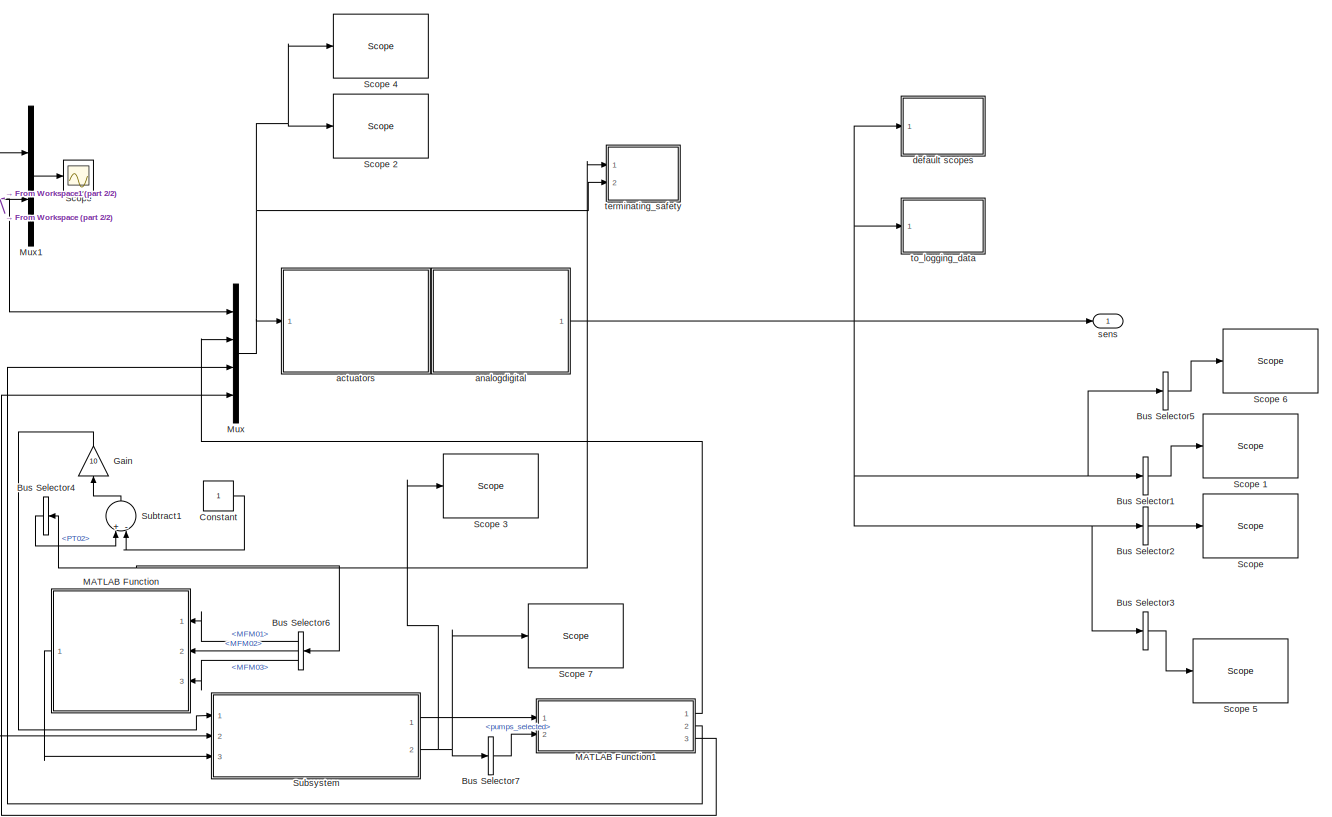
[diagram: root canvas - part 1/2, most of the canvas]
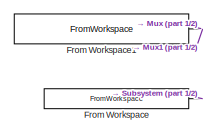
[diagram: root canvas - part 2/2, top left region]
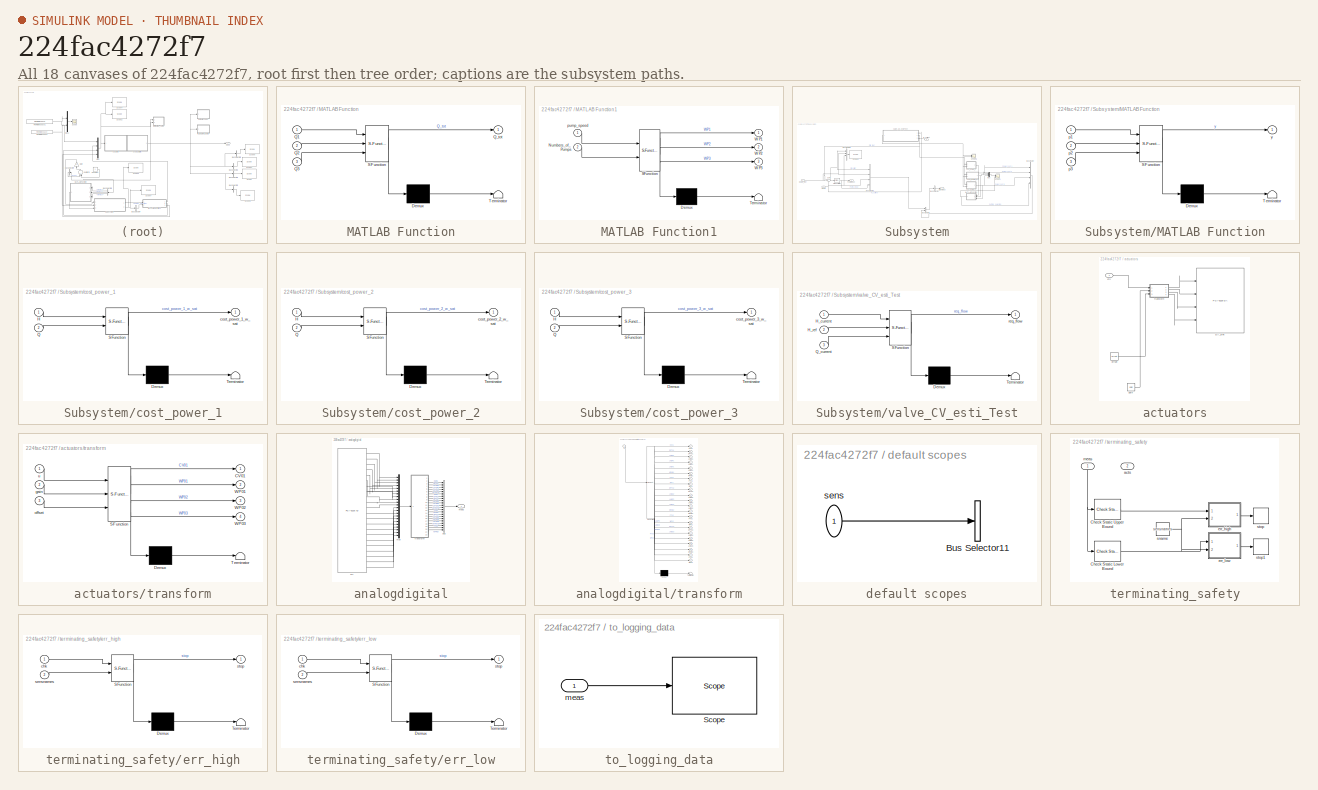
[diagram: thumbnail index - all 18 canvases of the model, root first then tree order]
MODEL slx_224fac4272f7
KIND model
CONFIG AbsTol = auto
CONFIG FixedStep = auto
CONFIG MaxStep = 0.1
CONFIG MinStep = auto
CONFIG RelTol = 1e-3
CONFIG SampleTimeConstraint = Unconstrained
CONFIG Solver = FixedStepAuto
CONFIG SolverMode = Auto
CONFIG SolverName = FixedStepAuto
CONFIG StartTime = 0.0
CONFIG StopTime = 5580
BLOCK [BusSelector] Bus Selector1
  OutputAsBus = on
  OutputSignals = CV01,DPT01,DPT02,DPT03,MFM01,MFM02,MFM03,PT02
  Ports = [1, 1]
BLOCK [BusSelector] Bus Selector2
  OutputAsBus = on
  OutputSignals = LMGV1,LMGV2,LMGV3,LMGC1,LMGC2,LMGC3,LMGP1,LMGP2,LMGP3
  Ports = [1, 1]
BLOCK [BusSelector] Bus Selector3
  OutputAsBus = on
  OutputSignals = WP01,WP02,WP03
  Ports = [1, 1]
BLOCK [BusSelector] Bus Selector4
  OutputSignals = PT02
  Ports = [1, 1]
BLOCK [BusSelector] Bus Selector5
  OutputAsBus = on
  OutputSignals = PT02
  Ports = [1, 1]
BLOCK [BusSelector] Bus Selector6
  OutputSignals = MFM01,MFM02,MFM03
  Ports = [1, 3]
BLOCK [BusSelector] Bus Selector7
  OutputSignals = pumps_selected
  Ports = [1, 1]
BLOCK [Constant] Constant
BLOCK [FromWorkspace] From Workspace
  Interpolate = off
  OutputAfterFinalValue = Holding final value
  SampleTime = 0
  VariableName = [Timevec.', H_ref_sort]
  ZeroCross = on
BLOCK [FromWorkspace] From Workspace1
  Interpolate = off
  OutputAfterFinalValue = Holding final value
  SampleTime = 0
  VariableName = [Timevec.', valvepos_sort]
  ZeroCross = on
BLOCK [Gain] Gain
  Gain = 10
  OutDataTypeStr = Inherit: Inherit via internal rule
  ParamDataTypeStr = Inherit: Inherit via internal rule
  SaturateOnIntegerOverflow = off
BLOCK [SubSystem] MATLAB Function
  ErrorFcn = Stateflow.Translate.translate
  PermitHierarchicalResolution = ExplicitOnly
  Ports = [3, 1]
  RequestExecContextInheritance = off
  SFBlockType = MATLAB Function
  TreatAsAtomicUnit = on
  Variant = off
BLOCK [Demux] MATLAB Function/ Demux 
  Outputs = 1
  Ports = [1, 1]
BLOCK [S-Function] MATLAB Function/ SFunction 
  EnableBusSupport = on
  FunctionName = sf_sfun
  PortCounts = [3 2]
  Ports = [3, 2]
  SFunctionDeploymentMode = off
  Tag = Stateflow S-Function feedback_plant_with_simple_v2_PID 3
BLOCK [Terminator] MATLAB Function/ Terminator 
BLOCK [Inport] MATLAB Function/Q1
  IconDisplay = Port number
BLOCK [Inport] MATLAB Function/Q2
  IconDisplay = Port number
  Port = 2
BLOCK [Inport] MATLAB Function/Q3
  IconDisplay = Port number
  Port = 3
BLOCK [Outport] MATLAB Function/Q_tot
  IconDisplay = Port number
BLOCK [SubSystem] MATLAB Function1
  ErrorFcn = Stateflow.Translate.translate
  PermitHierarchicalResolution = ExplicitOnly
  Ports = [2, 3]
  RequestExecContextInheritance = off
  SFBlockType = MATLAB Function
  TreatAsAtomicUnit = on
  Variant = off
BLOCK [Demux] MATLAB Function1/ Demux 
  Outputs = 1
  Ports = [1, 1]
BLOCK [S-Function] MATLAB Function1/ SFunction 
  EnableBusSupport = on
  FunctionName = sf_sfun
  PortCounts = [2 4]
  Ports = [2, 4]
  SFunctionDeploymentMode = off
  Tag = Stateflow S-Function feedback_plant_with_simple_v2_PID 4
BLOCK [Terminator] MATLAB Function1/ Terminator 
BLOCK [Inport] MATLAB Function1/Numbers_of_Pumps
  IconDisplay = Port number
  Port = 2
BLOCK [Outport] MATLAB Function1/WP1
  IconDisplay = Port number
BLOCK [Outport] MATLAB Function1/WP2
  IconDisplay = Port number
  Port = 2
BLOCK [Outport] MATLAB Function1/WP3
  IconDisplay = Port number
  Port = 3
BLOCK [Inport] MATLAB Function1/pump_speed
  IconDisplay = Port number
BLOCK [Mux] Mux
  DisplayOption = bar
  Ports = [4, 1]
BLOCK [Mux] Mux1
  DisplayOption = bar
  Inputs = 2
  Ports = [2, 1]
BLOCK [Scope] Scope
  Ports = [1]
  ScopeSpecificationString = Simulink.scopes.TimeScopeBlockCfg('CurrentConfiguration', extmgr.ConfigurationSet(extmgr.Configuration('Core','General UI',true),extmgr.Configuration('Core','Source UI',true),extmgr.Configuration('Sources','WiredSimulink',true),extmgr.Configuration('Visuals','Time Domain',true,'SerializedDisplays',{struct('MinYLimReal','-0.4','MaxYLimReal','5.6','YLabelReal','','MinYLimMag','0.00000','MaxYLimMag',...<+1375ch>
BLOCK [Reference] Scope   REF=slrtlib/Displays and
Logging/Scope 
  Ports = [1]
  SourceBlock = slrtlib/Displays and\nLogging/Scope
  SourceType = xpcscopeblock
BLOCK [Reference] Scope 1  REF=slrtlib/Displays and
Logging/Scope 
  Ports = [1]
  SourceBlock = slrtlib/Displays and\nLogging/Scope
  SourceType = xpcscopeblock
BLOCK [Reference] Scope 2  REF=slrtlib/Displays and
Logging/Scope 
  Ports = [1]
  SourceBlock = slrtlib/Displays and\nLogging/Scope
  SourceType = xpcscopeblock
BLOCK [Reference] Scope 3  REF=slrtlib/Displays and
Logging/Scope 
  Ports = [1]
  SourceBlock = slrtlib/Displays and\nLogging/Scope
  SourceType = xpcscopeblock
BLOCK [Reference] Scope 4  REF=slrtlib/Displays and
Logging/Scope 
  Ports = [1]
  SourceBlock = slrtlib/Displays and\nLogging/Scope
  SourceType = xpcscopeblock
BLOCK [Reference] Scope 5  REF=slrtlib/Displays and
Logging/Scope 
  Ports = [1]
  SourceBlock = slrtlib/Displays and\nLogging/Scope
  SourceType = xpcscopeblock
BLOCK [Reference] Scope 6  REF=slrtlib/Displays and
Logging/Scope 
  Ports = [1]
  SourceBlock = slrtlib/Displays and\nLogging/Scope
  SourceType = xpcscopeblock
BLOCK [Reference] Scope 7  REF=slrtlib/Displays and
Logging/Scope 
  Ports = [1]
  SourceBlock = slrtlib/Displays and\nLogging/Scope
  SourceType = xpcscopeblock
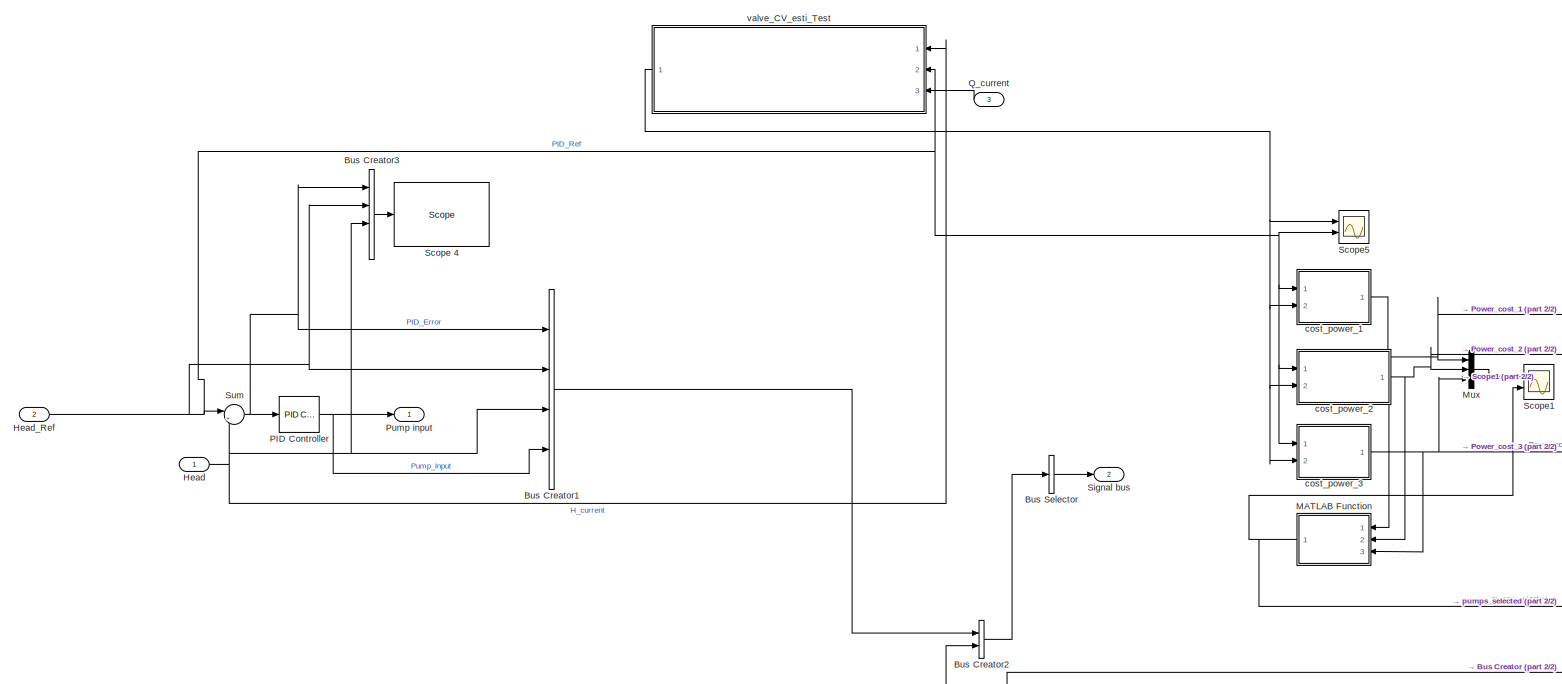
[diagram: Subsystem - part 1/2, most of the canvas]
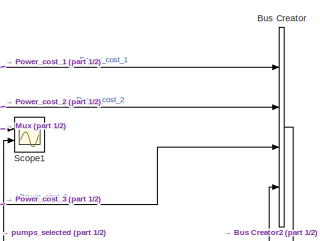
[diagram: Subsystem - part 2/2, middle right region]
BLOCK [SubSystem] Subsystem
  Ports = [3, 2]
  RequestExecContextInheritance = off
  Variant = off
BLOCK [BusCreator] Subsystem/Bus Creator
  DisplayOption = bar
  InheritFromInputs = on
  Inputs = 4
  Ports = [4, 1]
BLOCK [BusCreator] Subsystem/Bus Creator1
  DisplayOption = bar
  InheritFromInputs = on
  Inputs = 4
  Ports = [4, 1]
BLOCK [BusCreator] Subsystem/Bus Creator2
  DisplayOption = bar
  InheritFromInputs = on
  Inputs = 2
  Ports = [2, 1]
BLOCK [BusCreator] Subsystem/Bus Creator3
  DisplayOption = bar
  InheritFromInputs = on
  Inputs = 4
  Ports = [4, 1]
BLOCK [BusSelector] Subsystem/Bus Selector
  OutputAsBus = on
  OutputSignals = signal1.PID_Error,signal1.PID_Ref,signal1.Pump_Input,signal2.Power_cost_1,signal2.Power_cost_2,signal2.Power_cost_3,signal2.pumps_selected,signal1.H_current
  Ports = [1, 1]
BLOCK [Inport] Subsystem/Head
  IconDisplay = Port number
BLOCK [Inport] Subsystem/Head_Ref
  IconDisplay = Port number
  Port = 2
BLOCK [SubSystem] Subsystem/MATLAB Function
  ErrorFcn = Stateflow.Translate.translate
  PermitHierarchicalResolution = ExplicitOnly
  Ports = [3, 1]
  RequestExecContextInheritance = off
  SFBlockType = MATLAB Function
  TreatAsAtomicUnit = on
  Variant = off
BLOCK [Demux] Subsystem/MATLAB Function/ Demux 
  Outputs = 1
  Ports = [1, 1]
BLOCK [S-Function] Subsystem/MATLAB Function/ SFunction 
  EnableBusSupport = on
  FunctionName = sf_sfun
  PortCounts = [3 2]
  Ports = [3, 2]
  SFunctionDeploymentMode = off
  Tag = Stateflow S-Function feedback_plant_with_simple_v2_PID 5
BLOCK [Terminator] Subsystem/MATLAB Function/ Terminator 
BLOCK [Inport] Subsystem/MATLAB Function/p1
  IconDisplay = Port number
BLOCK [Inport] Subsystem/MATLAB Function/p2
  IconDisplay = Port number
  Port = 2
BLOCK [Inport] Subsystem/MATLAB Function/p3
  IconDisplay = Port number
  Port = 3
BLOCK [Outport] Subsystem/MATLAB Function/y
  IconDisplay = Port number
BLOCK [Mux] Subsystem/Mux
  DisplayOption = bar
  Inputs = 3
  Ports = [3, 1]
BLOCK [Reference] Subsystem/PID Controller  REF=simulink/Continuous/PID Controller
  Ports = [1, 1]
  SourceBlock = simulink/Continuous/PID Controller
  SourceType = PID 1dof
BLOCK [Outport] Subsystem/Pump input 
  IconDisplay = Port number
BLOCK [Inport] Subsystem/Q_current
  IconDisplay = Port number
  Port = 3
BLOCK [Reference] Subsystem/Scope 4  REF=slrtlib/Displays and
Logging/Scope 
  Ports = [1]
  SourceBlock = slrtlib/Displays and\nLogging/Scope
  SourceType = xpcscopeblock
BLOCK [Scope] Subsystem/Scope1
  NumInputPorts = 2
  Ports = [2]
  ScopeSpecificationString = Simulink.scopes.TimeScopeBlockCfg('CurrentConfiguration', extmgr.ConfigurationSet(extmgr.Configuration('Core','General UI',true,'DisplayFullSourceName',true),extmgr.Configuration('Core','Source UI',true),extmgr.Configuration('Sources','WiredSimulink',true,'DataLoggingVariableName','ScopeData1'),extmgr.Configuration('Visuals','Time Domain',true,'SerializedDisplays',{struct('MinYLimReal','-18674.989...<+2112ch>
BLOCK [Scope] Subsystem/Scope5
  NumInputPorts = 2
  Ports = [2]
  ScopeSpecificationString = Simulink.scopes.TimeScopeBlockCfg('CurrentConfiguration', extmgr.ConfigurationSet(extmgr.Configuration('Core','General UI',true),extmgr.Configuration('Core','Source UI',true),extmgr.Configuration('Sources','WiredSimulink',true,'DataLoggingVariableName','ScopeData1'),extmgr.Configuration('Visuals','Time Domain',true,'SerializedDisplays',{struct('MinYLimReal','-1.40034','MaxYLimReal','12.60304','YLa...<+2058ch>
BLOCK [Outport] Subsystem/Signal bus
  IconDisplay = Port number
  Port = 2
BLOCK [Sum] Subsystem/Sum
  IconShape = round
  InputSameDT = off
  Inputs = |+-
  OutDataTypeStr = Inherit: Inherit via internal rule
  Ports = [2, 1]
  SaturateOnIntegerOverflow = off
BLOCK [SubSystem] Subsystem/cost_power_1
  ErrorFcn = Stateflow.Translate.translate
  PermitHierarchicalResolution = ExplicitOnly
  Ports = [2, 1]
  RequestExecContextInheritance = off
  SFBlockType = MATLAB Function
  TreatAsAtomicUnit = on
  Variant = off
BLOCK [Demux] Subsystem/cost_power_1/ Demux 
  Outputs = 1
  Ports = [1, 1]
BLOCK [S-Function] Subsystem/cost_power_1/ SFunction 
  EnableBusSupport = on
  FunctionName = sf_sfun
  PortCounts = [2 2]
  Ports = [2, 2]
  SFunctionDeploymentMode = off
  Tag = Stateflow S-Function feedback_plant_with_simple_v2_PID 6
BLOCK [Terminator] Subsystem/cost_power_1/ Terminator 
BLOCK [Inport] Subsystem/cost_power_1/H
  IconDisplay = Port number
BLOCK [Inport] Subsystem/cost_power_1/Q
  IconDisplay = Port number
  Port = 2
BLOCK [Outport] Subsystem/cost_power_1/cost_power_1_w_sat
  IconDisplay = Port number
BLOCK [SubSystem] Subsystem/cost_power_2
  ErrorFcn = Stateflow.Translate.translate
  PermitHierarchicalResolution = ExplicitOnly
  Ports = [2, 1]
  RequestExecContextInheritance = off
  SFBlockType = MATLAB Function
  TreatAsAtomicUnit = on
  Variant = off
BLOCK [Demux] Subsystem/cost_power_2/ Demux 
  Outputs = 1
  Ports = [1, 1]
BLOCK [S-Function] Subsystem/cost_power_2/ SFunction 
  EnableBusSupport = on
  FunctionName = sf_sfun
  PortCounts = [2 2]
  Ports = [2, 2]
  SFunctionDeploymentMode = off
  Tag = Stateflow S-Function feedback_plant_with_simple_v2_PID 7
BLOCK [Terminator] Subsystem/cost_power_2/ Terminator 
BLOCK [Inport] Subsystem/cost_power_2/H
  IconDisplay = Port number
BLOCK [Inport] Subsystem/cost_power_2/Q
  IconDisplay = Port number
  Port = 2
BLOCK [Outport] Subsystem/cost_power_2/cost_power_2_w_sat
  IconDisplay = Port number
BLOCK [SubSystem] Subsystem/cost_power_3
  ErrorFcn = Stateflow.Translate.translate
  PermitHierarchicalResolution = ExplicitOnly
  Ports = [2, 1]
  RequestExecContextInheritance = off
  SFBlockType = MATLAB Function
  TreatAsAtomicUnit = on
  Variant = off
BLOCK [Demux] Subsystem/cost_power_3/ Demux 
  Outputs = 1
  Ports = [1, 1]
BLOCK [S-Function] Subsystem/cost_power_3/ SFunction 
  EnableBusSupport = on
  FunctionName = sf_sfun
  PortCounts = [2 2]
  Ports = [2, 2]
  SFunctionDeploymentMode = off
  Tag = Stateflow S-Function feedback_plant_with_simple_v2_PID 8
BLOCK [Terminator] Subsystem/cost_power_3/ Terminator 
BLOCK [Inport] Subsystem/cost_power_3/H
  IconDisplay = Port number
BLOCK [Inport] Subsystem/cost_power_3/Q
  IconDisplay = Port number
  Port = 2
BLOCK [Outport] Subsystem/cost_power_3/cost_power_3_w_sat
  IconDisplay = Port number
BLOCK [SubSystem] Subsystem/valve_CV_esti_Test
  ErrorFcn = Stateflow.Translate.translate
  PermitHierarchicalResolution = ExplicitOnly
  Ports = [3, 1]
  RequestExecContextInheritance = off
  SFBlockType = MATLAB Function
  TreatAsAtomicUnit = on
  Variant = off
BLOCK [Demux] Subsystem/valve_CV_esti_Test/ Demux 
  Outputs = 1
  Ports = [1, 1]
BLOCK [S-Function] Subsystem/valve_CV_esti_Test/ SFunction 
  EnableBusSupport = on
  FunctionName = sf_sfun
  PortCounts = [3 2]
  Ports = [3, 2]
  SFunctionDeploymentMode = off
  Tag = Stateflow S-Function feedback_plant_with_simple_v2_PID 9
BLOCK [Terminator] Subsystem/valve_CV_esti_Test/ Terminator 
BLOCK [Inport] Subsystem/valve_CV_esti_Test/H_current
  IconDisplay = Port number
BLOCK [Inport] Subsystem/valve_CV_esti_Test/H_ref
  IconDisplay = Port number
  Port = 2
BLOCK [Inport] Subsystem/valve_CV_esti_Test/Q_current
  IconDisplay = Port number
  Port = 3
BLOCK [Outport] Subsystem/valve_CV_esti_Test/req_flow
  IconDisplay = Port number
BLOCK [Sum] Subtract1
  InputSameDT = off
  Inputs = +-
  OutDataTypeStr = Inherit: Inherit via internal rule
  Ports = [2, 1]
  SaturateOnIntegerOverflow = off
BLOCK [SubSystem] actuators
  Ports = [1]
  RequestExecContextInheritance = off
  Variant = off
BLOCK [Reference] actuators/DA_sink  REF=xpcnilib/D//A/M Series/PCI-6229 DA
  Ports = [4]
  SourceBlock = xpcnilib/D//A/M Series/PCI-6229 DA
  SourceType = danipci6229
BLOCK [Inport] actuators/ctrl
  IconDisplay = Port number
BLOCK [Constant] actuators/gain
  Value = gain
BLOCK [Constant] actuators/offset
  Value = offset
BLOCK [SubSystem] actuators/transform
  ErrorFcn = Stateflow.Translate.translate
  PermitHierarchicalResolution = ExplicitOnly
  Ports = [3, 4]
  RequestExecContextInheritance = off
  SFBlockType = MATLAB Function
  TreatAsAtomicUnit = on
  Variant = off
BLOCK [Demux] actuators/transform/ Demux 
  Outputs = 1
  Ports = [1, 1]
BLOCK [S-Function] actuators/transform/ SFunction 
  EnableBusSupport = on
  FunctionName = sf_sfun
  PortCounts = [3 5]
  Ports = [3, 5]
  SFunctionDeploymentMode = off
  Tag = Stateflow S-Function feedback_plant_with_simple_v2_PID 1
BLOCK [Terminator] actuators/transform/ Terminator 
BLOCK [Outport] actuators/transform/CV01
  IconDisplay = Port number
BLOCK [Outport] actuators/transform/WP01
  IconDisplay = Port number
  Port = 2
BLOCK [Outport] actuators/transform/WP02
  IconDisplay = Port number
  Port = 3
BLOCK [Outport] actuators/transform/WP03
  IconDisplay = Port number
  Port = 4
BLOCK [Inport] actuators/transform/gain
  IconDisplay = Port number
  Port = 2
BLOCK [Inport] actuators/transform/offset
  IconDisplay = Port number
  Port = 3
BLOCK [Inport] actuators/transform/u
  IconDisplay = Port number
BLOCK [SubSystem] analogdigital
  Ports = [0, 1]
  RequestExecContextInheritance = off
  Variant = off
BLOCK [BusCreator] analogdigital/bus
  DisplayOption = bar
  InheritFromInputs = on
  Inputs = 22
  Ports = [22, 1]
BLOCK [Outport] analogdigital/meas
  IconDisplay = Port number
BLOCK [Mux] analogdigital/mux
  DisplayOption = bar
  Inputs = 22
  Ports = [22, 1]
BLOCK [Reference] analogdigital/src  REF=xpcnilib/A//D/M Series/PCI-6229 AD
  Ports = [0, 22]
  SourceBlock = xpcnilib/A//D/M Series/PCI-6229 AD
  SourceType = adnipci6229
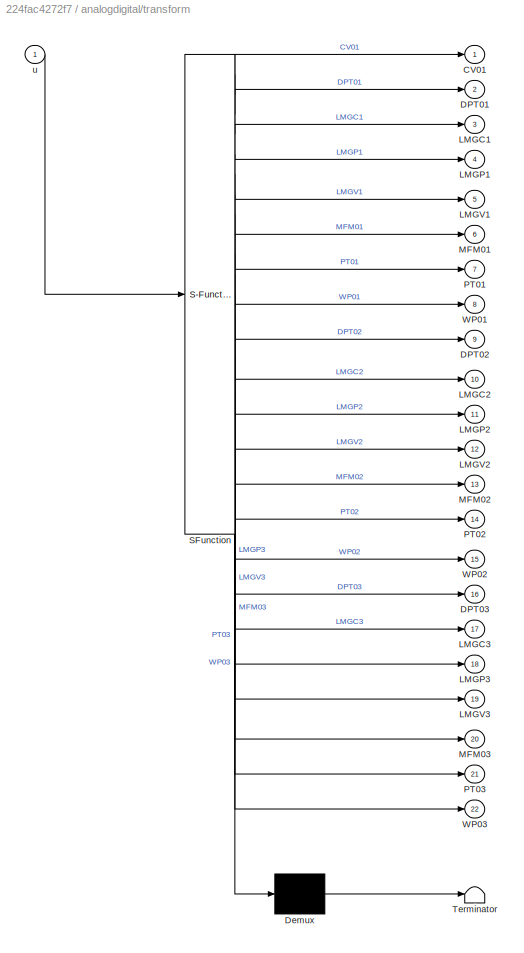
BLOCK [SubSystem] analogdigital/transform
  ErrorFcn = Stateflow.Translate.translate
  PermitHierarchicalResolution = ExplicitOnly
  Ports = [1, 22]
  RequestExecContextInheritance = off
  SFBlockType = MATLAB Function
  TreatAsAtomicUnit = on
  Variant = off
BLOCK [Demux] analogdigital/transform/ Demux 
  Outputs = 1
  Ports = [1, 1]
BLOCK [S-Function] analogdigital/transform/ SFunction 
  EnableBusSupport = on
  FunctionName = sf_sfun
  Parameters = gain,offset
  PortCounts = [1 23]
  Ports = [1, 23]
  SFunctionDeploymentMode = off
  Tag = Stateflow S-Function feedback_plant_with_simple_v2_PID 2
BLOCK [Terminator] analogdigital/transform/ Terminator 
BLOCK [Outport] analogdigital/transform/CV01
  IconDisplay = Port number
BLOCK [Outport] analogdigital/transform/DPT01
  IconDisplay = Port number
  Port = 2
BLOCK [Outport] analogdigital/transform/DPT02
  IconDisplay = Port number
  Port = 9
BLOCK [Outport] analogdigital/transform/DPT03
  IconDisplay = Port number
  Port = 16
BLOCK [Outport] analogdigital/transform/LMGC1
  IconDisplay = Port number
  Port = 3
BLOCK [Outport] analogdigital/transform/LMGC2
  IconDisplay = Port number
  Port = 10
BLOCK [Outport] analogdigital/transform/LMGC3
  IconDisplay = Port number
  Port = 17
BLOCK [Outport] analogdigital/transform/LMGP1
  IconDisplay = Port number
  Port = 4
BLOCK [Outport] analogdigital/transform/LMGP2
  IconDisplay = Port number
  Port = 11
BLOCK [Outport] analogdigital/transform/LMGP3
  IconDisplay = Port number
  Port = 18
BLOCK [Outport] analogdigital/transform/LMGV1
  IconDisplay = Port number
  Port = 5
BLOCK [Outport] analogdigital/transform/LMGV2
  IconDisplay = Port number
  Port = 12
BLOCK [Outport] analogdigital/transform/LMGV3
  IconDisplay = Port number
  Port = 19
BLOCK [Outport] analogdigital/transform/MFM01
  IconDisplay = Port number
  Port = 6
BLOCK [Outport] analogdigital/transform/MFM02
  IconDisplay = Port number
  Port = 13
BLOCK [Outport] analogdigital/transform/MFM03
  IconDisplay = Port number
  Port = 20
BLOCK [Outport] analogdigital/transform/PT01
  IconDisplay = Port number
  Port = 7
BLOCK [Outport] analogdigital/transform/PT02
  IconDisplay = Port number
  Port = 14
BLOCK [Outport] analogdigital/transform/PT03
  IconDisplay = Port number
  Port = 21
BLOCK [Outport] analogdigital/transform/WP01
  IconDisplay = Port number
  Port = 8
BLOCK [Outport] analogdigital/transform/WP02
  IconDisplay = Port number
  Port = 15
BLOCK [Outport] analogdigital/transform/WP03
  IconDisplay = Port number
  Port = 22
BLOCK [Inport] analogdigital/transform/u
  IconDisplay = Port number
BLOCK [SubSystem] default scopes
  Ports = [1]
  RequestExecContextInheritance = off
  Variant = off
BLOCK [BusSelector] default scopes/Bus Selector11
  OutputAsBus = on
  OutputSignals = CV01,DPT01,LMGC1
  Ports = [1, 1]
BLOCK [Inport] default scopes/sens
  IconDisplay = Port number
BLOCK [Outport] sens
  IconDisplay = Port number
BLOCK [SubSystem] terminating_safety
  Ports = [2]
  RequestExecContextInheritance = off
  Variant = off
BLOCK [Reference] terminating_safety/Check Static Lower Bound  REF=simulink/Model
Verification/Check Static 
Lower Bound
  Description = [sensors.MinOp]-([sensors.MaxOp]-[sensors.MinOp])*0.05 <= u
  Ports = [1, 1]
  SourceBlock = simulink/Model\nVerification/Check Static \nLower Bound
  SourceType = Checks_SMin
BLOCK [Reference] terminating_safety/Check Static Upper Bound  REF=simulink/Model
Verification/Check Static 
Upper Bound
  Description = u <= [sensors.MaxOp]+([sensors.MaxOp]-[sensors.MinOp])*0.05
  Ports = [1, 1]
  SourceBlock = simulink/Model\nVerification/Check Static \nUpper Bound
  SourceType = Checks_SMax
BLOCK [Inport] terminating_safety/acts
  IconDisplay = Port number
  Port = 2
BLOCK [SubSystem] terminating_safety/err_high
  ErrorFcn = Stateflow.Translate.translate
  PermitHierarchicalResolution = ExplicitOnly
  Ports = [2, 1]
  RequestExecContextInheritance = off
  SFBlockType = MATLAB Function
  TreatAsAtomicUnit = on
  Variant = off
BLOCK [Demux] terminating_safety/err_high/ Demux 
  Outputs = 1
  Ports = [1, 1]
BLOCK [S-Function] terminating_safety/err_high/ SFunction 
  EnableBusSupport = on
  FunctionName = sf_sfun
  PortCounts = [2 2]
  Ports = [2, 2]
  SFunctionDeploymentMode = off
  Tag = Stateflow S-Function feedback_plant_with_simple_v2_PID 18
BLOCK [Terminator] terminating_safety/err_high/ Terminator 
BLOCK [Inport] terminating_safety/err_high/chk
  IconDisplay = Port number
BLOCK [Inport] terminating_safety/err_high/sensnames
  IconDisplay = Port number
  Port = 2
BLOCK [Outport] terminating_safety/err_high/stop
  IconDisplay = Port number
BLOCK [SubSystem] terminating_safety/err_low
  ErrorFcn = Stateflow.Translate.translate
  PermitHierarchicalResolution = ExplicitOnly
  Ports = [2, 1]
  RequestExecContextInheritance = off
  SFBlockType = MATLAB Function
  TreatAsAtomicUnit = on
  Variant = off
BLOCK [Demux] terminating_safety/err_low/ Demux 
  Outputs = 1
  Ports = [1, 1]
BLOCK [S-Function] terminating_safety/err_low/ SFunction 
  EnableBusSupport = on
  FunctionName = sf_sfun
  PortCounts = [2 2]
  Ports = [2, 2]
  SFunctionDeploymentMode = off
  Tag = Stateflow S-Function feedback_plant_with_simple_v2_PID 19
BLOCK [Terminator] terminating_safety/err_low/ Terminator 
BLOCK [Inport] terminating_safety/err_low/chk
  IconDisplay = Port number
BLOCK [Inport] terminating_safety/err_low/sensnames
  IconDisplay = Port number
  Port = 2
BLOCK [Outport] terminating_safety/err_low/stop
  IconDisplay = Port number
BLOCK [Inport] terminating_safety/meas
  IconDisplay = Port number
BLOCK [Constant] terminating_safety/sname
  Value = sensnames
BLOCK [Stop] terminating_safety/stop
BLOCK [Stop] terminating_safety/stop1
BLOCK [SubSystem] to_logging_data
  Ports = [1]
  RequestExecContextInheritance = off
  Variant = off
BLOCK [Reference] to_logging_data/Scope   REF=slrtlib/Displays and
Logging/Scope 
  Ports = [1]
  SourceBlock = slrtlib/Displays and\nLogging/Scope
  SourceType = xpcscopeblock
BLOCK [Inport] to_logging_data/meas
  IconDisplay = Port number
LINE Bus Selector1:1 -> Scope 1:1
LINE Bus Selector2:1 -> Scope :1
LINE Bus Selector3:1 -> Scope 5:1
LINE Bus Selector4:1 -> Subtract1:1
LINE Bus Selector5:1 -> Scope 6:1
LINE Bus Selector6:1 -> MATLAB Function:1
LINE Bus Selector6:2 -> MATLAB Function:2
LINE Bus Selector6:3 -> MATLAB Function:3
LINE Bus Selector7:1 -> MATLAB Function1:2
LINE Constant:1 -> Subtract1:2
NET From Workspace1:1 -> Mux1:1, Mux:1
NET From Workspace:1 -> Mux1:2, Subsystem:2
LINE Gain:1 -> Subsystem:1
LINE MATLAB Function1:1 -> Mux:2
LINE MATLAB Function1:2 -> Mux:3
LINE MATLAB Function1:3 -> Mux:4
LINE MATLAB Function:1 -> Subsystem:3
LINE Mux1:1 -> Scope:1
NET Mux:1 -> Scope 2:1, Scope 4:1, actuators:1, terminating_safety:2
LINE Subsystem/Bus Creator1:1 -> Subsystem/Bus Creator2:1
LINE Subsystem/Bus Creator2:1 -> Subsystem/Bus Selector:1
LINE Subsystem/Bus Creator3:1 -> Subsystem/Scope 4:1
LINE Subsystem/Bus Creator:1 -> Subsystem/Bus Creator2:2
LINE Subsystem/Bus Selector:1 -> Subsystem/Signal bus:1
NET Subsystem/Head:1 -> Subsystem/Bus Creator1:3, Subsystem/Bus Creator3:3, Subsystem/Sum:2, Subsystem/valve_CV_esti_Test:1
NET Subsystem/Head_Ref:1 -> Subsystem/Bus Creator1:2, Subsystem/Bus Creator3:2, Subsystem/Scope5:2, Subsystem/Sum:1, Subsystem/cost_power_1:1, Subsystem/cost_power_2:1, Subsystem/cost_power_3:1, Subsystem/valve_CV_esti_Test:2
NET Subsystem/MATLAB Function:1 -> Subsystem/Bus Creator:4, Subsystem/Scope1:2
LINE Subsystem/Mux:1 -> Subsystem/Scope1:1
NET Subsystem/PID Controller:1 -> Subsystem/Bus Creator1:4, Subsystem/Pump input :1
LINE Subsystem/Q_current:1 -> Subsystem/valve_CV_esti_Test:3
NET Subsystem/Sum:1 -> Subsystem/Bus Creator1:1, Subsystem/Bus Creator3:1, Subsystem/PID Controller:1
NET Subsystem/cost_power_1:1 -> Subsystem/Bus Creator:1, Subsystem/MATLAB Function:1, Subsystem/Mux:1
NET Subsystem/cost_power_2:1 -> Subsystem/Bus Creator:2, Subsystem/MATLAB Function:2, Subsystem/Mux:2
NET Subsystem/cost_power_3:1 -> Subsystem/Bus Creator:3, Subsystem/MATLAB Function:3, Subsystem/Mux:3
NET Subsystem/valve_CV_esti_Test:1 -> Subsystem/Scope5:1, Subsystem/cost_power_1:2, Subsystem/cost_power_2:2, Subsystem/cost_power_3:2
LINE Subsystem:1 -> MATLAB Function1:1
NET Subsystem:2 -> Bus Selector7:1, Scope 3:1, Scope 7:1
LINE Subtract1:1 -> Gain:1
LINE actuators/ctrl:1 -> actuators/transform:1
LINE actuators/gain:1 -> actuators/transform:2
LINE actuators/offset:1 -> actuators/transform:3
LINE actuators/transform:1 -> actuators/DA_sink:1
LINE actuators/transform:2 -> actuators/DA_sink:2
LINE actuators/transform:3 -> actuators/DA_sink:3
LINE actuators/transform:4 -> actuators/DA_sink:4
LINE analogdigital/bus:1 -> analogdigital/meas:1
LINE analogdigital/mux:1 -> analogdigital/transform:1
LINE analogdigital/src:1 -> analogdigital/mux:1
LINE analogdigital/src:10 -> analogdigital/mux:10
LINE analogdigital/src:11 -> analogdigital/mux:11
LINE analogdigital/src:12 -> analogdigital/mux:12
LINE analogdigital/src:13 -> analogdigital/mux:13
LINE analogdigital/src:14 -> analogdigital/mux:14
LINE analogdigital/src:15 -> analogdigital/mux:15
LINE analogdigital/src:16 -> analogdigital/mux:16
LINE analogdigital/src:17 -> analogdigital/mux:17
LINE analogdigital/src:18 -> analogdigital/mux:18
LINE analogdigital/src:19 -> analogdigital/mux:19
LINE analogdigital/src:2 -> analogdigital/mux:2
LINE analogdigital/src:20 -> analogdigital/mux:20
LINE analogdigital/src:21 -> analogdigital/mux:21
LINE analogdigital/src:22 -> analogdigital/mux:22
LINE analogdigital/src:3 -> analogdigital/mux:3
LINE analogdigital/src:4 -> analogdigital/mux:4
LINE analogdigital/src:5 -> analogdigital/mux:5
LINE analogdigital/src:6 -> analogdigital/mux:6
LINE analogdigital/src:7 -> analogdigital/mux:7
LINE analogdigital/src:8 -> analogdigital/mux:8
LINE analogdigital/src:9 -> analogdigital/mux:9
LINE analogdigital/transform:1 -> analogdigital/bus:1
LINE analogdigital/transform:10 -> analogdigital/bus:10
LINE analogdigital/transform:11 -> analogdigital/bus:11
LINE analogdigital/transform:12 -> analogdigital/bus:12
LINE analogdigital/transform:13 -> analogdigital/bus:13
LINE analogdigital/transform:14 -> analogdigital/bus:14
LINE analogdigital/transform:15 -> analogdigital/bus:15
LINE analogdigital/transform:16 -> analogdigital/bus:16
LINE analogdigital/transform:17 -> analogdigital/bus:17
LINE analogdigital/transform:18 -> analogdigital/bus:18
LINE analogdigital/transform:19 -> analogdigital/bus:19
LINE analogdigital/transform:2 -> analogdigital/bus:2
LINE analogdigital/transform:20 -> analogdigital/bus:20
LINE analogdigital/transform:21 -> analogdigital/bus:21
LINE analogdigital/transform:22 -> analogdigital/bus:22
LINE analogdigital/transform:3 -> analogdigital/bus:3
LINE analogdigital/transform:4 -> analogdigital/bus:4
LINE analogdigital/transform:5 -> analogdigital/bus:5
LINE analogdigital/transform:6 -> analogdigital/bus:6
LINE analogdigital/transform:7 -> analogdigital/bus:7
LINE analogdigital/transform:8 -> analogdigital/bus:8
LINE analogdigital/transform:9 -> analogdigital/bus:9
NET analogdigital:1 -> Bus Selector1:1, Bus Selector2:1, Bus Selector3:1, Bus Selector4:1, Bus Selector5:1, Bus Selector6:1, default scopes:1, sens:1, terminating_safety:1, to_logging_data:1
LINE default scopes/sens:1 -> default scopes/Bus Selector11:1
LINE terminating_safety/Check Static Lower Bound:1 -> terminating_safety/err_low:1
LINE terminating_safety/Check Static Upper Bound:1 -> terminating_safety/err_high:1
LINE terminating_safety/err_high:1 -> terminating_safety/stop:1
LINE terminating_safety/err_low:1 -> terminating_safety/stop1:1
NET terminating_safety/meas:1 -> terminating_safety/Check Static Lower Bound:1, terminating_safety/Check Static Upper Bound:1
NET terminating_safety/sname:1 -> terminating_safety/err_high:2, terminating_safety/err_low:2
LINE to_logging_data/meas:1 -> to_logging_data/Scope :1
note: NET lines group one-source signal fan-out (src -> all destinations, sorted); 1:1 wires keep LINE
CHART actuators/transform states=1 transitions=1
  STATE_LABEL 'eML_blk_kernel()'
  STATE_LABEL 'SCRIPT:\nfunction [CV01,WP01,WP02,WP03]  = fcn(u,gain,offset)\n   y = u.*gain-offset;\nCV01 = y(1);\nWP01 = y(2);\nWP02 = y(3);\nWP03 = y(4);'
CHART analogdigital/transform states=1 transitions=1
  STATE_LABEL 'eML_blk_kernel()'
  STATE_LABEL 'SCRIPT:\nfunction [CV01,DPT01,LMGC1,LMGP1,LMGV1,MFM01,PT01,WP01,DPT02,LMGC2,LMGP2,LMGV2,MFM02,PT02,WP02,DPT03,LMGC3,LMGP3,LMGV3,MFM03,PT03,WP03]  = fcn(u,gain,offset)\n   y = u(:).*gain(:)-offset(:);\nCV01 = y(1);\nDPT01 = y(2);\nLMGC1 = y(3);\nLMGP1 = y(4);\nLMGV1 = y(5);\nMFM01 = y(6);\nPT01 = y(7);\nWP01 = y(8);\nDPT02 = y(9);\nLMGC2 = y(10);\nLMGP2 = y(11);\nLMGV2 = y(12);\nMFM02 = y(13);\nPT02 = y(14);\nWP02 ...<+111ch>'
CHART MATLAB Function states=1 transitions=1
  STATE_LABEL 'eML_blk_kernel()'
  STATE_LABEL 'SCRIPT:\nfunction Q_tot = fcn(Q1, Q2, Q3)\n\nQ_tot = ((Q1 + Q2 + Q3) *60 * 60)/1000;   \n'
CHART MATLAB Function1 states=1 transitions=1
  STATE_LABEL 'eML_blk_kernel()'
  STATE_LABEL 'SCRIPT:\nfunction [WP1, WP2, WP3] = fcn(pump_speed, Numbers_of_Pumps)\nWP1 = 0;\nWP2 = 0;\nWP3 = 0;\nif Numbers_of_Pumps == 1\n    WP1 = pump_speed;\nelseif Numbers_of_Pumps == 2\n    WP1 = 1;\n    WP2 = pump_speed;\nelseif Numbers_of_Pumps == 3\n    WP1 = 1;\n    WP2 = 1;\n    WP3 = pump_speed;\nend\n    \n'
CHART Subsystem/MATLAB Function states=1 transitions=1
  STATE_LABEL 'eML_blk_kernel()'
  STATE_LABEL 'SCRIPT:\n function y = fcn(p1, p2, p3)\ny = 1;\nif p2 == 100000\n    %2 pumps?\n    y = 3;\nelseif p1 == 50000\n    y = 2;\n    %3 pumps? \nend\n'
CHART Subsystem/cost_power_1 states=1 transitions=1
  STATE_LABEL 'eML_blk_kernel()'
  STATE_LABEL 'SCRIPT:\nfunction cost_power_1_w_sat = cost_power_1(H,Q)\n%#codegen\n\n%    This function was generated by the Symbolic Math Toolbox version 7.0.\n%    22-Aug-2016 11:17:26\n\nt2 = H.^5.314163576626763e-1;\nt3 = t2.*4.673851686285024e2;\nt4 = Q.^1.284992200316062;\nt5 = t4.*9.427556616520734e1;\nt13 = H.*Q.*3.590092811013802;\nt6 = t3+t5-t13;\nt7 = H.^1.157084314722127;\nt8 = t7.*6.132915089183577;\nt9 = Q.^2.68...<+242ch>'
CHART Subsystem/cost_power_2 states=1 transitions=1
  STATE_LABEL 'eML_blk_kernel()'
  STATE_LABEL 'SCRIPT:\nfunction cost_power_2_w_sat = cost_power_2(H,Q)\n%#codegen\n\n%    This function was generated by the Symbolic Math Toolbox version 7.0.\n%    22-Aug-2016 11:17:26\n\nt2 = Q.*(1.0./2.0);\nt3 = t2.^1.284992200316062;\nt4 = t3.*9.427556616520734e1;\nt5 = H.^5.314163576626763e-1;\nt6 = t5.*4.673851686285024e2;\nt14 = H.*Q.*1.795046405506901;\nt7 = t4+t6-t14;\nt8 = H.^1.157084314722127;\nt9 = t8.*6.13291508...<+271ch>'
CHART Subsystem/cost_power_3 states=1 transitions=1
  STATE_LABEL 'eML_blk_kernel()'
  STATE_LABEL 'SCRIPT:\nfunction cost_power_3_w_sat = cost_power_3(H,Q)\n%#codegen\n\n%    This function was generated by the Symbolic Math Toolbox version 7.0.\n%    22-Aug-2016 11:17:26\n\nt2 = Q.*(1.0./3.0);\nt3 = t2.^1.284992200316062;\nt4 = t3.*9.427556616520734e1;\nt5 = H.^5.314163576626763e-1;\nt6 = t5.*4.673851686285024e2;\nt14 = H.*Q.*1.196697603671267;\nt7 = t4+t6-t14;\nt8 = H.^1.157084314722127;\nt9 = t8.*6.13291508...<+274ch>'
CHART Subsystem/valve_CV_esti_Test states=1 transitions=1
  STATE_LABEL 'eML_blk_kernel()'
  STATE_LABEL 'SCRIPT:\nfunction req_flow = valve_CV_esti_Test(H_current,H_ref,Q_current)\n%#codegen\n\n%    This function was generated by the Symbolic Math Toolbox version 7.0.\n%    22-Aug-2016 11:17:28\n\nreq_flow = 1.0./sqrt(H_current).*sqrt(H_ref).*Q_current;\n'
CHART terminating_safety/err_high states=1 transitions=1
  STATE_LABEL 'eML_blk_kernel()'
  STATE_LABEL "SCRIPT:\nfunction stop  = fcn(chk, sensnames)\n%#codegen\n%test = char(sensnames.');\ntest = sensnames.';\nk = find(test == 47);\nk = [0 k];\nk = [k numel(test)];\nstop = 0;\nfor i = 1:numel(chk)\n    if chk(i) == 0\n        str = char(test(k(i)+1:k(i+1)-1));\n        Error = [str ': VALUE TOO HIGH ']\n        coder.ceval('printf', ['%s' 10 0], Error);\n        stop = stop+1;\n    end\nend\n\n\n\n"
CHART terminating_safety/err_low states=1 transitions=1
  STATE_LABEL 'eML_blk_kernel()'
  STATE_LABEL "SCRIPT:\nfunction stop  = fcn(chk, sensnames)\n%#codegen\ntest = char(sensnames.');\nk = strfind(test, '/');\nk = [0 k];\nk = [k numel(sensnames)];\nstop = 0;\nfor i = 1:numel(chk)\n    if chk(i) == 0\n        str = char(test(k(i)+1:k(i+1)-1));\n        Error = [str ': VALUE TOO LOW']\n        coder.ceval('printf', ['%s' 10 0], Error);\n        stop = stop+1;\n    end\nend\n"
